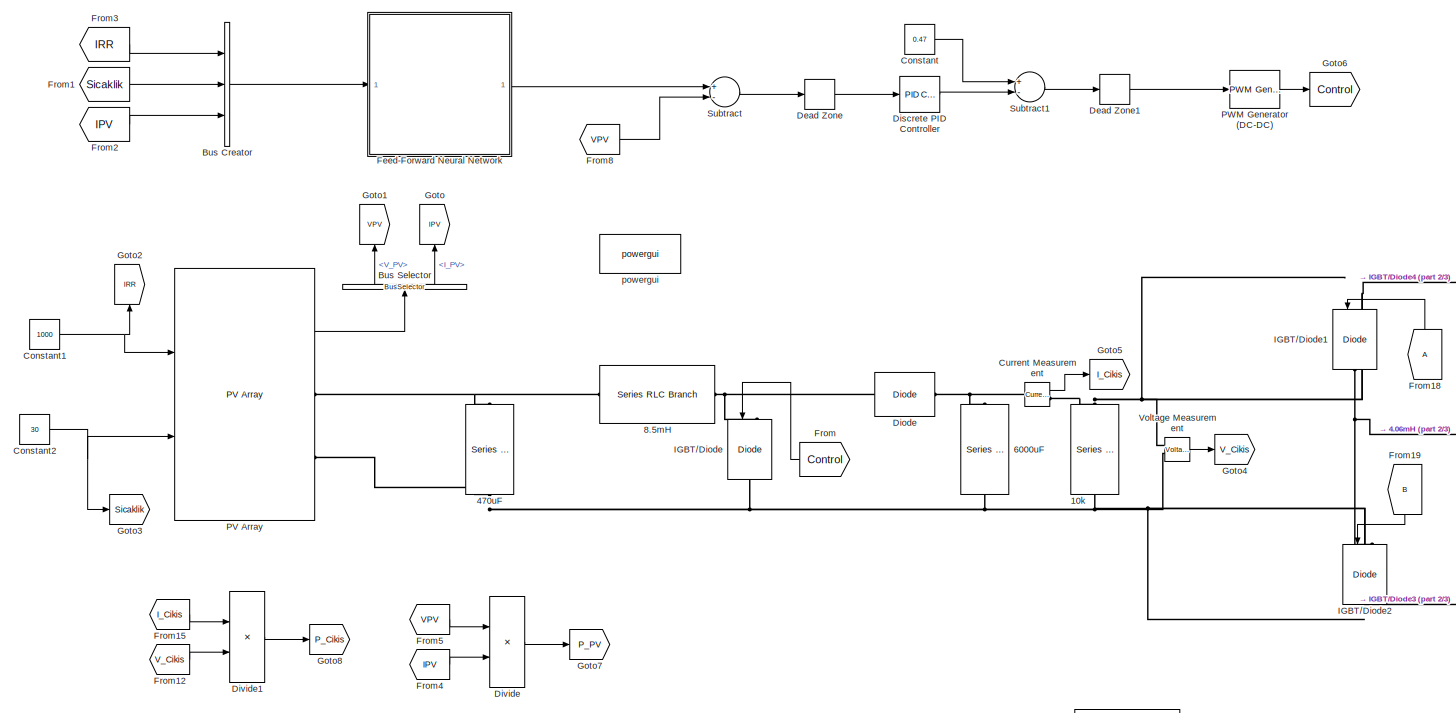
[diagram: root canvas - part 1/3, middle left region]
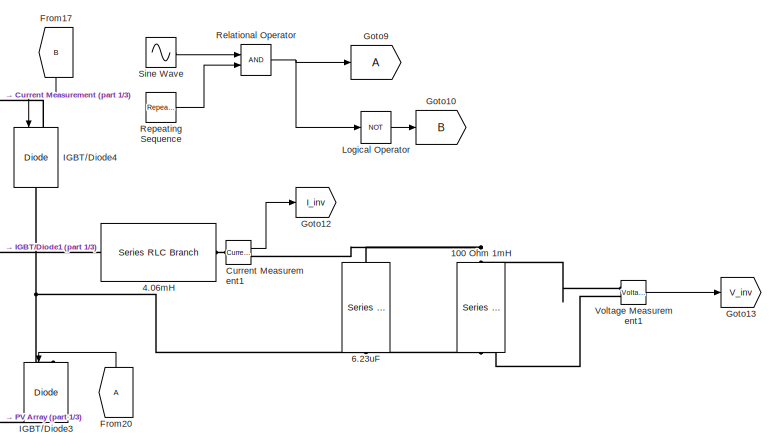
[diagram: root canvas - part 2/3, middle right region]
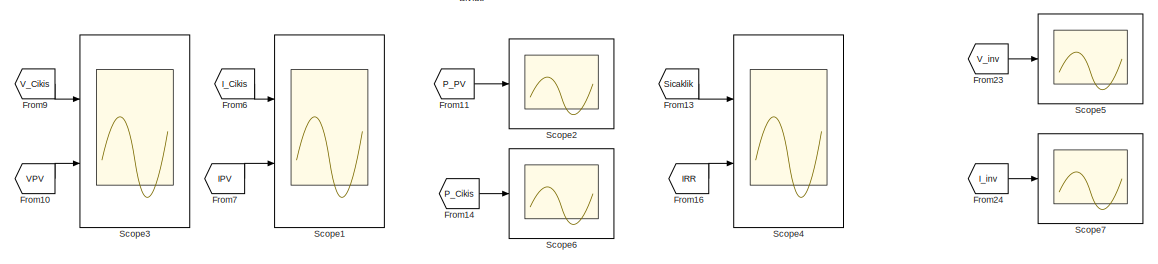
[diagram: root canvas - part 3/3, bottom left region]
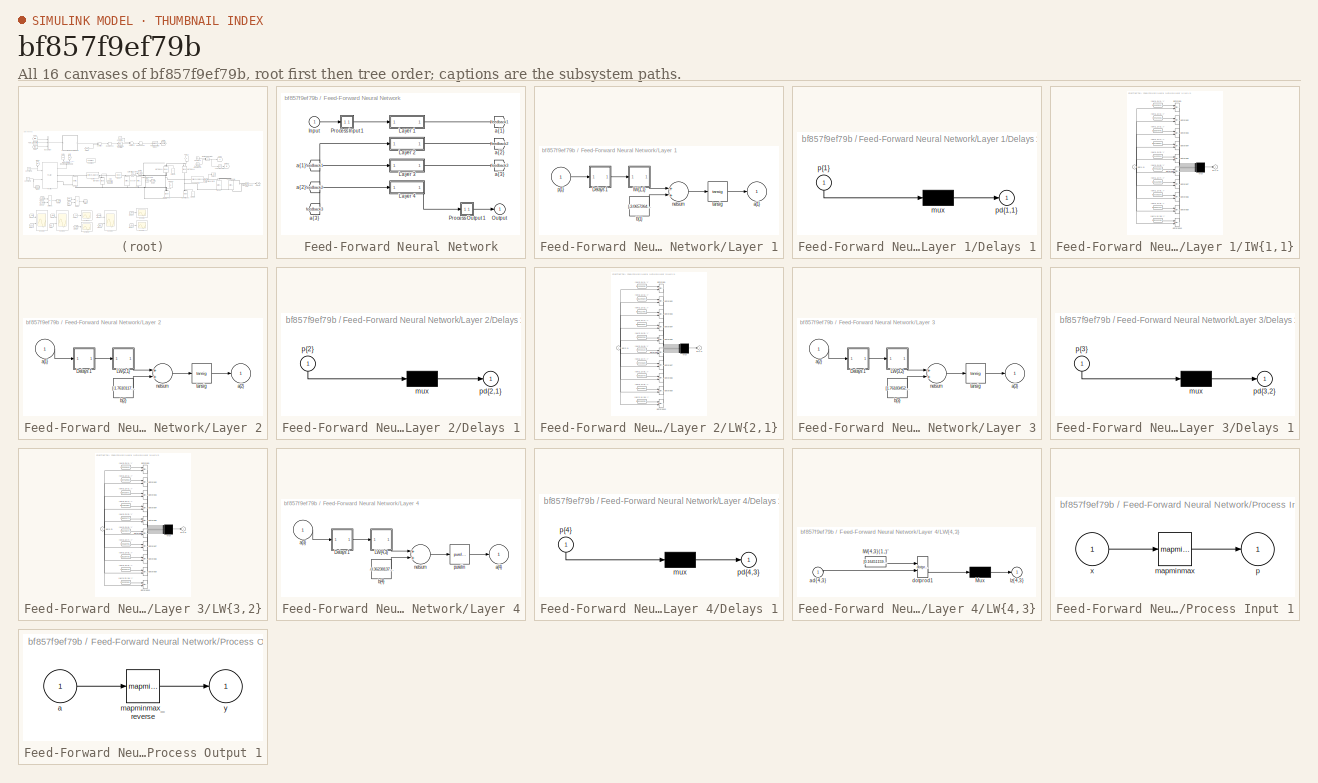
[diagram: thumbnail index - all 16 canvases of the model, root first then tree order]
MODEL slx_bf857f9ef79b
KIND model
CONFIG AbsTol = auto
CONFIG EnableMultiTasking = off
CONFIG FixedStep = 10e-6
CONFIG MaxStep = auto
CONFIG MinStep = auto
CONFIG RelTol = 1e-3
CONFIG SampleTimeConstraint = Unconstrained
CONFIG Solver = FixedStepDiscrete
CONFIG SolverName = FixedStepDiscrete
CONFIG StartTime = 0.0
CONFIG StopTime = 3.0
BLOCK [Reference] 100 Ohm 1mH   REF=powerlib/Elements/Series RLC Branch
  Ports = [0, 0, 0, 0, 0, 1, 1]
  SourceBlock = powerlib/Elements/Series RLC Branch
  SourceProductBaseCode = PS
  SourceProductName = Simscape Power Systems
  SourceType = Series RLC Branch
BLOCK [Reference] 10k  REF=powerlib/Elements/Series RLC Branch
  Ports = [0, 0, 0, 0, 0, 1, 1]
  SourceBlock = powerlib/Elements/Series RLC Branch
  SourceProductBaseCode = PS
  SourceProductName = Simscape Power Systems
  SourceType = Series RLC Branch
BLOCK [Reference] 4.06mH  REF=powerlib/Elements/Series RLC Branch
  Ports = [0, 0, 0, 0, 0, 1, 1]
  SourceBlock = powerlib/Elements/Series RLC Branch
  SourceProductBaseCode = PS
  SourceProductName = Simscape Power Systems
  SourceType = Series RLC Branch
BLOCK [Reference] 470uF  REF=powerlib/Elements/Series RLC Branch
  Ports = [0, 0, 0, 0, 0, 1, 1]
  SourceBlock = powerlib/Elements/Series RLC Branch
  SourceProductBaseCode = PS
  SourceProductName = Simscape Power Systems
  SourceType = Series RLC Branch
BLOCK [Reference] 6.23uF   REF=powerlib/Elements/Series RLC Branch
  Ports = [0, 0, 0, 0, 0, 1, 1]
  SourceBlock = powerlib/Elements/Series RLC Branch
  SourceProductBaseCode = PS
  SourceProductName = Simscape Power Systems
  SourceType = Series RLC Branch
BLOCK [Reference] 6000uF   REF=powerlib/Elements/Series RLC Branch
  Ports = [0, 0, 0, 0, 0, 1, 1]
  SourceBlock = powerlib/Elements/Series RLC Branch
  SourceProductBaseCode = PS
  SourceProductName = Simscape Power Systems
  SourceType = Series RLC Branch
BLOCK [Reference] 8.5mH  REF=powerlib/Elements/Series RLC Branch
  Ports = [0, 0, 0, 0, 0, 1, 1]
  SourceBlock = powerlib/Elements/Series RLC Branch
  SourceProductBaseCode = PS
  SourceProductName = Simscape Power Systems
  SourceType = Series RLC Branch
BLOCK [BusCreator] Bus Creator
  DisplayOption = bar
  InheritFromInputs = on
  Inputs = 3
  Ports = [3, 1]
BLOCK [BusSelector] Bus Selector
  OutputAsBus = off
  OutputSignals = V_PV,I_PV
  Ports = [1, 2]
BLOCK [Constant] Constant
  Value = 0.47
BLOCK [Constant] Constant1
  Value = 1000
BLOCK [Constant] Constant2
  Value = 30
BLOCK [Reference] Current Measurement  REF=powerlib/Measurements/Current Measurement
  Ports = [0, 1, 0, 0, 0, 1, 1]
  SourceBlock = powerlib/Measurements/Current Measurement
  SourceProductBaseCode = PS
  SourceProductName = Simscape Power Systems
  SourceType = Current Measurement
  UserDataPersistent = on
BLOCK [Reference] Current Measurement1  REF=powerlib/Measurements/Current Measurement
  Ports = [0, 1, 0, 0, 0, 1, 1]
  SourceBlock = powerlib/Measurements/Current Measurement
  SourceProductBaseCode = PS
  SourceProductName = Simscape Power Systems
  SourceType = Current Measurement
  UserDataPersistent = on
BLOCK [DeadZone] Dead Zone
  LowerValue = 0
  UpperValue = 1
BLOCK [DeadZone] Dead Zone1
  LowerValue = 0
  UpperValue = 1
BLOCK [Reference] Diode  REF=powerlib/Power
Electronics/Diode
  Ports = [0, 0, 0, 0, 0, 1, 1]
  SourceBlock = powerlib/Power\nElectronics/Diode
  SourceProductBaseCode = PS
  SourceProductName = Simscape Power Systems
  SourceType = Diode
BLOCK [Reference] Discrete PID Controller  REF=simulink/Continuous/PID Controller
  Ports = [1, 1]
  SourceBlock = simulink/Continuous/PID Controller
  SourceProductBaseCode = SL
  SourceProductName = Simulink
  SourceType = PID 1dof
BLOCK [Product] Divide
  InputSameDT = off
  Inputs = **
  OutDataTypeStr = Inherit: Inherit via internal rule
  Ports = [2, 1]
  RndMeth = Floor
  SaturateOnIntegerOverflow = off
BLOCK [Product] Divide1
  InputSameDT = off
  Inputs = **
  OutDataTypeStr = Inherit: Inherit via internal rule
  Ports = [2, 1]
  RndMeth = Floor
  SaturateOnIntegerOverflow = off
BLOCK [SubSystem] Feed-Forward Neural Network
  Ports = [1, 1]
  RequestExecContextInheritance = off
BLOCK [From] Feed-Forward Neural Network/ a{1} 
  GotoTag = feedback1
BLOCK [From] Feed-Forward Neural Network/ a{2} 
  GotoTag = feedback2
BLOCK [From] Feed-Forward Neural Network/ a{3} 
  GotoTag = feedback3
BLOCK [Inport] Feed-Forward Neural Network/Input
  IconDisplay = Port number
  PortDimensions = 3
BLOCK [SubSystem] Feed-Forward Neural Network/Layer 1
  Ports = [1, 1]
  RequestExecContextInheritance = off
BLOCK [SubSystem] Feed-Forward Neural Network/Layer 1/Delays 1
  Ports = [1, 1]
  RequestExecContextInheritance = off
BLOCK [Mux] Feed-Forward Neural Network/Layer 1/Delays 1/mux
  Inputs = 1
  Ports = [1, 1]
BLOCK [Outport] Feed-Forward Neural Network/Layer 1/Delays 1/pd{1,1}
  IconDisplay = Port number
BLOCK [Inport] Feed-Forward Neural Network/Layer 1/Delays 1/p{1}
  IconDisplay = Port number
  PortDimensions = 3
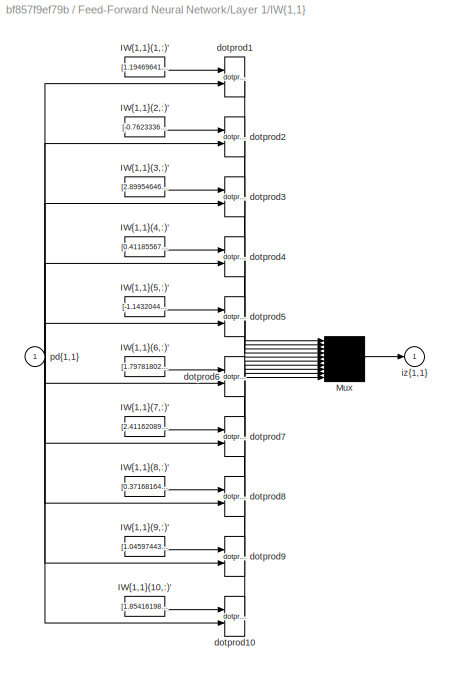
BLOCK [SubSystem] Feed-Forward Neural Network/Layer 1/IW{1,1}
  Ports = [1, 1]
  RequestExecContextInheritance = off
BLOCK [Constant] Feed-Forward Neural Network/Layer 1/IW{1,1}/IW{1,1}(1,:)'
  Value = [1.194696416877034206294183604768477380275726318359375;-2.300665658527468071525845516589470207691192626953125;-1.4738366214598517256462173463660292327404022216796875]
BLOCK [Constant] Feed-Forward Neural Network/Layer 1/IW{1,1}/IW{1,1}(10,:)'
  Value = [1.854161984111707628386511714779771864414215087890625;-1.3702128758578393519229621233534999191761016845703125;-1.9109245615166126075479269275092519819736480712890625]
BLOCK [Constant] Feed-Forward Neural Network/Layer 1/IW{1,1}/IW{1,1}(2,:)'
  Value = [-0.76233369613490753469164928901591338217258453369140625;-1.245238727395708178136146671022288501262664794921875;2.63566083323240096802919651963748037815093994140625]
BLOCK [Constant] Feed-Forward Neural Network/Layer 1/IW{1,1}/IW{1,1}(3,:)'
  Value = [2.89954646431230145253721275366842746734619140625;-0.305133871188944250096852783826761879026889801025390625;-0.69037626354315417831486456634593196213245391845703125]
BLOCK [Constant] Feed-Forward Neural Network/Layer 1/IW{1,1}/IW{1,1}(4,:)'
  Value = [0.41185567479472318108690842564101330935955047607421875;-1.78024920964271426981895274366252124309539794921875;-2.267603571340773616071828655549325048923492431640625]
BLOCK [Constant] Feed-Forward Neural Network/Layer 1/IW{1,1}/IW{1,1}(5,:)'
  Value = [-1.143204481119364235297553022974170744419097900390625;1.553552138124021819720610437798313796520233154296875;2.23063059491616133556135537219233810901641845703125]
BLOCK [Constant] Feed-Forward Neural Network/Layer 1/IW{1,1}/IW{1,1}(6,:)'
  Value = [1.7978180272984511933742624023579992353916168212890625;-1.327016418074680625949213208514265716075897216796875;1.99153874512051043410565398517064750194549560546875]
BLOCK [Constant] Feed-Forward Neural Network/Layer 1/IW{1,1}/IW{1,1}(7,:)'
  Value = [2.411620890296221286774880354641936719417572021484375;-1.76659826702359534777997396304272115230560302734375;-0.42211101715224774721946232602931559085845947265625]
BLOCK [Constant] Feed-Forward Neural Network/Layer 1/IW{1,1}/IW{1,1}(8,:)'
  Value = [0.3716816442504009554426147587946616113185882568359375;-1.8635194010268756326098582576378248631954193115234375;-2.383768703234597996498678185162134468555450439453125]
BLOCK [Constant] Feed-Forward Neural Network/Layer 1/IW{1,1}/IW{1,1}(9,:)'
  Value = [1.045974437776482801609745365567505359649658203125;-2.0525916308124845244265088695101439952850341796875;-1.9187949223707614354594852557056583464145660400390625]
BLOCK [Mux] Feed-Forward Neural Network/Layer 1/IW{1,1}/Mux
  Inputs = 10
  Ports = [10, 1]
BLOCK [Reference] Feed-Forward Neural Network/Layer 1/IW{1,1}/dotprod1  REF=neural/Weight Functions/dotprod
  Ports = [2, 1]
  SourceBlock = neural/Weight Functions/dotprod
  SourceProductBaseCode = NN
  SourceProductName = Neural Network Toolbox
  SourceType = DOTPROD
BLOCK [Reference] Feed-Forward Neural Network/Layer 1/IW{1,1}/dotprod10  REF=neural/Weight Functions/dotprod
  Ports = [2, 1]
  SourceBlock = neural/Weight Functions/dotprod
  SourceProductBaseCode = NN
  SourceProductName = Neural Network Toolbox
  SourceType = DOTPROD
BLOCK [Reference] Feed-Forward Neural Network/Layer 1/IW{1,1}/dotprod2  REF=neural/Weight Functions/dotprod
  Ports = [2, 1]
  SourceBlock = neural/Weight Functions/dotprod
  SourceProductBaseCode = NN
  SourceProductName = Neural Network Toolbox
  SourceType = DOTPROD
BLOCK [Reference] Feed-Forward Neural Network/Layer 1/IW{1,1}/dotprod3  REF=neural/Weight Functions/dotprod
  Ports = [2, 1]
  SourceBlock = neural/Weight Functions/dotprod
  SourceProductBaseCode = NN
  SourceProductName = Neural Network Toolbox
  SourceType = DOTPROD
BLOCK [Reference] Feed-Forward Neural Network/Layer 1/IW{1,1}/dotprod4  REF=neural/Weight Functions/dotprod
  Ports = [2, 1]
  SourceBlock = neural/Weight Functions/dotprod
  SourceProductBaseCode = NN
  SourceProductName = Neural Network Toolbox
  SourceType = DOTPROD
BLOCK [Reference] Feed-Forward Neural Network/Layer 1/IW{1,1}/dotprod5  REF=neural/Weight Functions/dotprod
  Ports = [2, 1]
  SourceBlock = neural/Weight Functions/dotprod
  SourceProductBaseCode = NN
  SourceProductName = Neural Network Toolbox
  SourceType = DOTPROD
BLOCK [Reference] Feed-Forward Neural Network/Layer 1/IW{1,1}/dotprod6  REF=neural/Weight Functions/dotprod
  Ports = [2, 1]
  SourceBlock = neural/Weight Functions/dotprod
  SourceProductBaseCode = NN
  SourceProductName = Neural Network Toolbox
  SourceType = DOTPROD
BLOCK [Reference] Feed-Forward Neural Network/Layer 1/IW{1,1}/dotprod7  REF=neural/Weight Functions/dotprod
  Ports = [2, 1]
  SourceBlock = neural/Weight Functions/dotprod
  SourceProductBaseCode = NN
  SourceProductName = Neural Network Toolbox
  SourceType = DOTPROD
BLOCK [Reference] Feed-Forward Neural Network/Layer 1/IW{1,1}/dotprod8  REF=neural/Weight Functions/dotprod
  Ports = [2, 1]
  SourceBlock = neural/Weight Functions/dotprod
  SourceProductBaseCode = NN
  SourceProductName = Neural Network Toolbox
  SourceType = DOTPROD
BLOCK [Reference] Feed-Forward Neural Network/Layer 1/IW{1,1}/dotprod9  REF=neural/Weight Functions/dotprod
  Ports = [2, 1]
  SourceBlock = neural/Weight Functions/dotprod
  SourceProductBaseCode = NN
  SourceProductName = Neural Network Toolbox
  SourceType = DOTPROD
BLOCK [Outport] Feed-Forward Neural Network/Layer 1/IW{1,1}/iz{1,1}
  IconDisplay = Port number
BLOCK [Inport] Feed-Forward Neural Network/Layer 1/IW{1,1}/pd{1,1}
  IconDisplay = Port number
  PortDimensions = 3
BLOCK [Outport] Feed-Forward Neural Network/Layer 1/a{1}
  IconDisplay = Port number
  InitialOutput = [0;0;0;0;0;0;0;0;0;0]
BLOCK [Constant] Feed-Forward Neural Network/Layer 1/b{1}
  Value = [-3.06572642225638247737151687033474445343017578125;2.34263877199734782408313549240119755268096923828125;-1.6554597006666771363825318985618650913238525390625;-1.1806944337025917501904359596665017306804656982421875;0.438583826991625624902582103459280915558338165283203125;0.336460892113827958471716783606098033487796783447265625;1.066182407193333236961052534752525389194488525390625;1.6554215030049590...<+134ch>
BLOCK [Sum] Feed-Forward Neural Network/Layer 1/netsum
  Inputs = 2
  Ports = [2, 1]
BLOCK [Inport] Feed-Forward Neural Network/Layer 1/p{1}
  IconDisplay = Port number
  PortDimensions = 3
BLOCK [Reference] Feed-Forward Neural Network/Layer 1/tansig  REF=neural/Transfer Functions/tansig
  Ports = [1, 1]
  SourceBlock = neural/Transfer Functions/tansig
  SourceProductBaseCode = NN
  SourceProductName = Neural Network Toolbox
  SourceType = TANSIG
BLOCK [SubSystem] Feed-Forward Neural Network/Layer 2
  Ports = [1, 1]
  RequestExecContextInheritance = off
BLOCK [SubSystem] Feed-Forward Neural Network/Layer 2/Delays 1
  Ports = [1, 1]
  RequestExecContextInheritance = off
BLOCK [Mux] Feed-Forward Neural Network/Layer 2/Delays 1/mux
  Inputs = 1
  Ports = [1, 1]
BLOCK [Outport] Feed-Forward Neural Network/Layer 2/Delays 1/pd{2,1}
  IconDisplay = Port number
BLOCK [Inport] Feed-Forward Neural Network/Layer 2/Delays 1/p{2}
  IconDisplay = Port number
  PortDimensions = 10
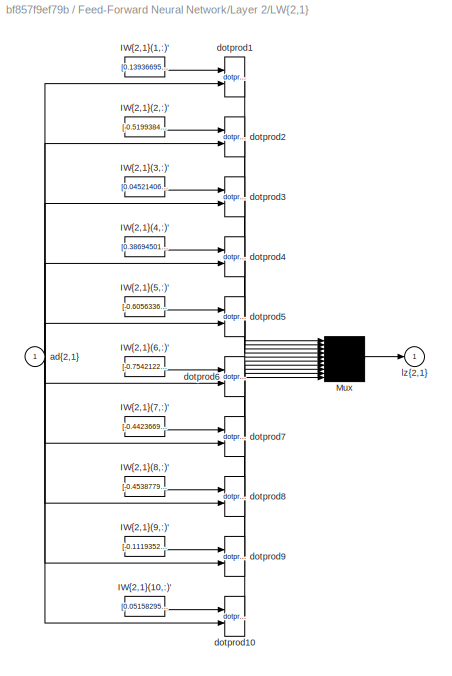
BLOCK [SubSystem] Feed-Forward Neural Network/Layer 2/LW{2,1}
  Ports = [1, 1]
  RequestExecContextInheritance = off
BLOCK [Constant] Feed-Forward Neural Network/Layer 2/LW{2,1}/IW{2,1}(1,:)'
  Value = [0.139366959458870509624972555684507824480533599853515625;-0.614827281062519492849105517962016165256500244140625;0.688177894740557238861811129027046263217926025390625;-0.68701419847141009800139954677433706820011138916015625;-0.58319759106715718388613822753541171550750732421875;-0.696423970065430442133447286323644220829010009765625;-0.469060357227766899779197729003499262034893035888671875;-0.652779...<+163ch>
BLOCK [Constant] Feed-Forward Neural Network/Layer 2/LW{2,1}/IW{2,1}(10,:)'
  Value = [0.051582951013673460083364119554971694014966487884521484375;-0.17592767164152700587465005810372531414031982421875;1.0624478089774822553437161332112736999988555908203125;0.4327226482321002709596768909250386059284210205078125;-0.68760670468995865878270024040830321609973907470703125;0.093995743159521083498475491069257259368896484375;0.07687660252497878488053828505144338123500347137451171875;-0.78486...<+163ch>
BLOCK [Constant] Feed-Forward Neural Network/Layer 2/LW{2,1}/IW{2,1}(2,:)'
  Value = [-0.51993849269170577809262567825498990714550018310546875;-0.69632182265172770652128519941470585763454437255859375;0.173453502341893328608790625366964377462863922119140625;1.038107292706407225324483079020865261554718017578125;0.32314185661799632587332098410115577280521392822265625;0.5531996419080911220333973687957040965557098388671875;-0.7893913973766839564660813266527839004993438720703125;0.50679...<+164ch>
BLOCK [Constant] Feed-Forward Neural Network/Layer 2/LW{2,1}/IW{2,1}(3,:)'
  Value = [0.045214066538750659340895055038345162756741046905517578125;0.72801425718701884282069158871308900415897369384765625;-0.03245155247372959184115615016708034090697765350341796875;0.5957504689197359315500079901539720594882965087890625;0.209315510922623404521658585508703254163265228271484375;0.260901920899436257084147428031428717076778411865234375;0.62563254962454806218374869786202907562255859375;-0.9...<+164ch>
BLOCK [Constant] Feed-Forward Neural Network/Layer 2/LW{2,1}/IW{2,1}(4,:)'
  Value = [0.38694501837432870861022138342377729713916778564453125;-0.8367057728349533984868457991979084908962249755859375;-0.45296886333229668952782276392099447548389434814453125;0.5348012619652198207376159189152531325817108154296875;0.467989646680515292143098804444889537990093231201171875;-0.052566207680762956633291338448543683625757694244384765625;-0.83013483182869129972658583938027732074260711669921875;...<+168ch>
BLOCK [Constant] Feed-Forward Neural Network/Layer 2/LW{2,1}/IW{2,1}(5,:)'
  Value = [-0.60563364240767381119212586781941354274749755859375;0.8769349923406453140017902114777825772762298583984375;-0.1620805188494852944192103905152180232107639312744140625;-0.60332173294263113927371477984706871211528778076171875;0.2321111430504836092847398276717285625636577606201171875;0.58028745292035444069966843017027713358402252197265625;0.1185108847643980833908017302746884524822235107421875;0.198...<+165ch>
BLOCK [Constant] Feed-Forward Neural Network/Layer 2/LW{2,1}/IW{2,1}(6,:)'
  Value = [-0.75421220459027704663412805530242621898651123046875;0.461712590692150925963943564056535251438617706298828125;0.2253937881064137227493660020627430640161037445068359375;-0.37061869623850773880491260570124723017215728759765625;0.77303136544003747676612192663014866411685943603515625;0.19440028916589480179055726694059558212757110595703125;-0.8021093971332866612300449560279957950115203857421875;-0.81...<+166ch>
BLOCK [Constant] Feed-Forward Neural Network/Layer 2/LW{2,1}/IW{2,1}(7,:)'
  Value = [-0.44236690922853927343538771310704760253429412841796875;-0.0199232441405640392506626312751905061304569244384765625;0.434080347927826404319517905605607666075229644775390625;-0.292824606370899187535172814023098908364772796630859375;0.86526037630491969832036147636245004832744598388671875;0.268578561631060974690399234532378613948822021484375;1.0050045005866212743939058782416395843029022216796875;0.7...<+170ch>
BLOCK [Constant] Feed-Forward Neural Network/Layer 2/LW{2,1}/IW{2,1}(8,:)'
  Value = [-0.4538779732604474315138531892444007098674774169921875;0.15074491562138037092921649673371575772762298583984375;-0.137303811242998674568838168852380476891994476318359375;0.4837000443810832717161929394933395087718963623046875;-0.47067247727733285689311060195905156433582305908203125;0.832822438274227305754493499989621341228485107421875;0.61718444934654204114821141047286801040172576904296875;0.79490...<+163ch>
BLOCK [Constant] Feed-Forward Neural Network/Layer 2/LW{2,1}/IW{2,1}(9,:)'
  Value = [-0.11193523658570504741849305219147936441004276275634765625;-0.6412716785848810996384372629108838737010955810546875;-0.30510987252114174506090193972340784966945648193359375;-0.70296724709517899309929589435341767966747283935546875;0.394439507578847547986100607886328361928462982177734375;0.6673373041884496092990275428746826946735382080078125;-0.165922148603146107914696472107607405632734298706054687...<+169ch>
BLOCK [Mux] Feed-Forward Neural Network/Layer 2/LW{2,1}/Mux
  Inputs = 10
  Ports = [10, 1]
BLOCK [Inport] Feed-Forward Neural Network/Layer 2/LW{2,1}/ad{2,1}
  IconDisplay = Port number
  PortDimensions = 10
BLOCK [Reference] Feed-Forward Neural Network/Layer 2/LW{2,1}/dotprod1  REF=neural/Weight Functions/dotprod
  Ports = [2, 1]
  SourceBlock = neural/Weight Functions/dotprod
  SourceProductBaseCode = NN
  SourceProductName = Neural Network Toolbox
  SourceType = DOTPROD
BLOCK [Reference] Feed-Forward Neural Network/Layer 2/LW{2,1}/dotprod10  REF=neural/Weight Functions/dotprod
  Ports = [2, 1]
  SourceBlock = neural/Weight Functions/dotprod
  SourceProductBaseCode = NN
  SourceProductName = Neural Network Toolbox
  SourceType = DOTPROD
BLOCK [Reference] Feed-Forward Neural Network/Layer 2/LW{2,1}/dotprod2  REF=neural/Weight Functions/dotprod
  Ports = [2, 1]
  SourceBlock = neural/Weight Functions/dotprod
  SourceProductBaseCode = NN
  SourceProductName = Neural Network Toolbox
  SourceType = DOTPROD
BLOCK [Reference] Feed-Forward Neural Network/Layer 2/LW{2,1}/dotprod3  REF=neural/Weight Functions/dotprod
  Ports = [2, 1]
  SourceBlock = neural/Weight Functions/dotprod
  SourceProductBaseCode = NN
  SourceProductName = Neural Network Toolbox
  SourceType = DOTPROD
BLOCK [Reference] Feed-Forward Neural Network/Layer 2/LW{2,1}/dotprod4  REF=neural/Weight Functions/dotprod
  Ports = [2, 1]
  SourceBlock = neural/Weight Functions/dotprod
  SourceProductBaseCode = NN
  SourceProductName = Neural Network Toolbox
  SourceType = DOTPROD
BLOCK [Reference] Feed-Forward Neural Network/Layer 2/LW{2,1}/dotprod5  REF=neural/Weight Functions/dotprod
  Ports = [2, 1]
  SourceBlock = neural/Weight Functions/dotprod
  SourceProductBaseCode = NN
  SourceProductName = Neural Network Toolbox
  SourceType = DOTPROD
BLOCK [Reference] Feed-Forward Neural Network/Layer 2/LW{2,1}/dotprod6  REF=neural/Weight Functions/dotprod
  Ports = [2, 1]
  SourceBlock = neural/Weight Functions/dotprod
  SourceProductBaseCode = NN
  SourceProductName = Neural Network Toolbox
  SourceType = DOTPROD
BLOCK [Reference] Feed-Forward Neural Network/Layer 2/LW{2,1}/dotprod7  REF=neural/Weight Functions/dotprod
  Ports = [2, 1]
  SourceBlock = neural/Weight Functions/dotprod
  SourceProductBaseCode = NN
  SourceProductName = Neural Network Toolbox
  SourceType = DOTPROD
BLOCK [Reference] Feed-Forward Neural Network/Layer 2/LW{2,1}/dotprod8  REF=neural/Weight Functions/dotprod
  Ports = [2, 1]
  SourceBlock = neural/Weight Functions/dotprod
  SourceProductBaseCode = NN
  SourceProductName = Neural Network Toolbox
  SourceType = DOTPROD
BLOCK [Reference] Feed-Forward Neural Network/Layer 2/LW{2,1}/dotprod9  REF=neural/Weight Functions/dotprod
  Ports = [2, 1]
  SourceBlock = neural/Weight Functions/dotprod
  SourceProductBaseCode = NN
  SourceProductName = Neural Network Toolbox
  SourceType = DOTPROD
BLOCK [Outport] Feed-Forward Neural Network/Layer 2/LW{2,1}/lz{2,1}
  IconDisplay = Port number
BLOCK [Inport] Feed-Forward Neural Network/Layer 2/a{1} 
  IconDisplay = Port number
  PortDimensions = 10
BLOCK [Outport] Feed-Forward Neural Network/Layer 2/a{2}
  IconDisplay = Port number
  InitialOutput = [0;0;0;0;0;0;0;0;0;0]
BLOCK [Constant] Feed-Forward Neural Network/Layer 2/b{2}
  Value = [-1.761011765199532508319180124090053141117095947265625;1.2715804793170837339033596435911022126674652099609375;-0.88043293802432487371589786562253721058368682861328125;-0.6058358841646882542164576079812832176685333251953125;0.346015250011034447563673666081740520894527435302734375;-0.22823197270950934534283760513062588870525360107421875;-0.634241829328281436772840606863610446453094482421875;-0.9665...<+161ch>
BLOCK [Sum] Feed-Forward Neural Network/Layer 2/netsum
  Inputs = 2
  Ports = [2, 1]
BLOCK [Reference] Feed-Forward Neural Network/Layer 2/tansig  REF=neural/Transfer Functions/tansig
  Ports = [1, 1]
  SourceBlock = neural/Transfer Functions/tansig
  SourceProductBaseCode = NN
  SourceProductName = Neural Network Toolbox
  SourceType = TANSIG
BLOCK [SubSystem] Feed-Forward Neural Network/Layer 3
  Ports = [1, 1]
  RequestExecContextInheritance = off
BLOCK [SubSystem] Feed-Forward Neural Network/Layer 3/Delays 1
  Ports = [1, 1]
  RequestExecContextInheritance = off
BLOCK [Mux] Feed-Forward Neural Network/Layer 3/Delays 1/mux
  Inputs = 1
  Ports = [1, 1]
BLOCK [Outport] Feed-Forward Neural Network/Layer 3/Delays 1/pd{3,2}
  IconDisplay = Port number
BLOCK [Inport] Feed-Forward Neural Network/Layer 3/Delays 1/p{3}
  IconDisplay = Port number
  PortDimensions = 10
BLOCK [SubSystem] Feed-Forward Neural Network/Layer 3/LW{3,2}
  Ports = [1, 1]
  RequestExecContextInheritance = off
BLOCK [Constant] Feed-Forward Neural Network/Layer 3/LW{3,2}/IW{3,2}(1,:)'
  Value = [-0.3999846606919224001330803730525076389312744140625;0.869918937407937686856485015596263110637664794921875;-0.38301463792397105745379803920513950288295745849609375;-0.89957239528069476985905339461169205605983734130859375;0.278496550774055273702600743490620516240596771240234375;-0.47808471685320619304349065714632160961627960205078125;0.7822134109873974949778130394406616687774658203125;-0.148908453...<+155ch>
BLOCK [Constant] Feed-Forward Neural Network/Layer 3/LW{3,2}/IW{3,2}(10,:)'
  Value = [-0.3335366738703509081886977583053521811962127685546875;0.8716491908409949029845620316336862742900848388671875;-0.5562354869371726184823501171194948256015777587890625;0.60687793223369645989606624425505287945270538330078125;-0.002823750865846845481410554157264414243400096893310546875;-0.780880359966358295054078553221188485622406005859375;-0.62193568994668113614210369632928632199764251708984375;-0....<+168ch>
BLOCK [Constant] Feed-Forward Neural Network/Layer 3/LW{3,2}/IW{3,2}(2,:)'
  Value = [-0.07589508450538652584160814740243949927389621734619140625;0.9608167461922623164838341836002655327320098876953125;0.33727821283747105862715898183523677289485931396484375;0.2230341467841015223871892203533207066357135772705078125;-0.175479300906613511212839284780784510076045989990234375;-0.434879062001289840022622001924901269376277923583984375;0.8216030020109043041642848947958555072546005249023437...<+170ch>
BLOCK [Constant] Feed-Forward Neural Network/Layer 3/LW{3,2}/IW{3,2}(3,:)'
  Value = [-0.84286716117852311658253938730922527611255645751953125;-0.77943358573383958454172670826665125787258148193359375;0.286533028630781061441012980139930732548236846923828125;0.68868301669111053886496165432617999613285064697265625;-0.447957157397504246443276088029961101710796356201171875;0.31590125548953562617526813482982106506824493408203125;0.57324759215105391962907788183656521141529083251953125;0....<+168ch>
BLOCK [Constant] Feed-Forward Neural Network/Layer 3/LW{3,2}/IW{3,2}(4,:)'
  Value = [1.110649517118452056507749148295260965824127197265625;0.5459382548380329325254933792166411876678466796875;0.07669214459164029606963453034040867350995540618896484375;0.393147241269902192328800083487294614315032958984375;-0.1393901081632832605894378730226890183985233306884765625;-0.511297288515500714112249625031836330890655517578125;-0.53751111068689716443458337380434386432170867919921875;-0.075375...<+159ch>
BLOCK [Constant] Feed-Forward Neural Network/Layer 3/LW{3,2}/IW{3,2}(5,:)'
  Value = [-0.800317324961350440304386211209930479526519775390625;-0.487994804901162648747003913740627467632293701171875;0.472520543861635167193213646896765567362308502197265625;-0.747237069818296628653797597507946193218231201171875;-0.08499634211297439623233884731234866194427013397216796875;0.639966007929543057031196440220810472965240478515625;0.19340712680851990246111427040887065231800079345703125;0.51142...<+160ch>
BLOCK [Constant] Feed-Forward Neural Network/Layer 3/LW{3,2}/IW{3,2}(6,:)'
  Value = [-0.66485722646626388421253750493633560836315155029296875;-0.04060210922424743740233310518306097947061061859130859375;0.16375058962347777136159265864989720284938812255859375;-0.1916306965280981933208437339999363757669925689697265625;-0.51468487503972648600125694429152645170688629150390625;0.9356067642331691303070329013280570507049560546875;-0.75673626426666296129752709020976908504962921142578125;0...<+168ch>
BLOCK [Constant] Feed-Forward Neural Network/Layer 3/LW{3,2}/IW{3,2}(7,:)'
  Value = [-0.458849696871556744781628367491066455841064453125;0.1775032042689372036026185242008068598806858062744140625;-1.2224105045717863493592858503689058125019073486328125;-0.1341662349867452641571929916608496569097042083740234375;0.304638395586930565972494378002011217176914215087890625;0.83125539407307857953099983205902390182018280029296875;-0.303320512860833446655561829174985177814960479736328125;0.5...<+169ch>
BLOCK [Constant] Feed-Forward Neural Network/Layer 3/LW{3,2}/IW{3,2}(8,:)'
  Value = [-0.51807307113571232637383445762679912149906158447265625;0.7609322707975600952323702585999853909015655517578125;-0.6525205075667031007213836346636526286602020263671875;0.8364000484267222201850700002978555858135223388671875;-0.4473999293771646623696369715617038309574127197265625;-0.2369518394958663176641522341014933772385120391845703125;-0.301751757875491743998708216167869977653026580810546875;-0....<+167ch>
BLOCK [Constant] Feed-Forward Neural Network/Layer 3/LW{3,2}/IW{3,2}(9,:)'
  Value = [-0.07501709404785657231418127821598318405449390411376953125;-0.1640989556511952829342959603309282101690769195556640625;0.9802271502012300796735644325963221490383148193359375;-0.69083573545794607628778294383664615452289581298828125;-0.08556944467633280371199333558251964859664440155029296875;0.3080324207150397786136863942374475300312042236328125;-0.56808917063151675996834910620236769318580627441406...<+177ch>
BLOCK [Mux] Feed-Forward Neural Network/Layer 3/LW{3,2}/Mux
  Inputs = 10
  Ports = [10, 1]
BLOCK [Inport] Feed-Forward Neural Network/Layer 3/LW{3,2}/ad{3,2}
  IconDisplay = Port number
  PortDimensions = 10
BLOCK [Reference] Feed-Forward Neural Network/Layer 3/LW{3,2}/dotprod1  REF=neural/Weight Functions/dotprod
  Ports = [2, 1]
  SourceBlock = neural/Weight Functions/dotprod
  SourceProductBaseCode = NN
  SourceProductName = Neural Network Toolbox
  SourceType = DOTPROD
BLOCK [Reference] Feed-Forward Neural Network/Layer 3/LW{3,2}/dotprod10  REF=neural/Weight Functions/dotprod
  Ports = [2, 1]
  SourceBlock = neural/Weight Functions/dotprod
  SourceProductBaseCode = NN
  SourceProductName = Neural Network Toolbox
  SourceType = DOTPROD
BLOCK [Reference] Feed-Forward Neural Network/Layer 3/LW{3,2}/dotprod2  REF=neural/Weight Functions/dotprod
  Ports = [2, 1]
  SourceBlock = neural/Weight Functions/dotprod
  SourceProductBaseCode = NN
  SourceProductName = Neural Network Toolbox
  SourceType = DOTPROD
BLOCK [Reference] Feed-Forward Neural Network/Layer 3/LW{3,2}/dotprod3  REF=neural/Weight Functions/dotprod
  Ports = [2, 1]
  SourceBlock = neural/Weight Functions/dotprod
  SourceProductBaseCode = NN
  SourceProductName = Neural Network Toolbox
  SourceType = DOTPROD
BLOCK [Reference] Feed-Forward Neural Network/Layer 3/LW{3,2}/dotprod4  REF=neural/Weight Functions/dotprod
  Ports = [2, 1]
  SourceBlock = neural/Weight Functions/dotprod
  SourceProductBaseCode = NN
  SourceProductName = Neural Network Toolbox
  SourceType = DOTPROD
BLOCK [Reference] Feed-Forward Neural Network/Layer 3/LW{3,2}/dotprod5  REF=neural/Weight Functions/dotprod
  Ports = [2, 1]
  SourceBlock = neural/Weight Functions/dotprod
  SourceProductBaseCode = NN
  SourceProductName = Neural Network Toolbox
  SourceType = DOTPROD
BLOCK [Reference] Feed-Forward Neural Network/Layer 3/LW{3,2}/dotprod6  REF=neural/Weight Functions/dotprod
  Ports = [2, 1]
  SourceBlock = neural/Weight Functions/dotprod
  SourceProductBaseCode = NN
  SourceProductName = Neural Network Toolbox
  SourceType = DOTPROD
BLOCK [Reference] Feed-Forward Neural Network/Layer 3/LW{3,2}/dotprod7  REF=neural/Weight Functions/dotprod
  Ports = [2, 1]
  SourceBlock = neural/Weight Functions/dotprod
  SourceProductBaseCode = NN
  SourceProductName = Neural Network Toolbox
  SourceType = DOTPROD
BLOCK [Reference] Feed-Forward Neural Network/Layer 3/LW{3,2}/dotprod8  REF=neural/Weight Functions/dotprod
  Ports = [2, 1]
  SourceBlock = neural/Weight Functions/dotprod
  SourceProductBaseCode = NN
  SourceProductName = Neural Network Toolbox
  SourceType = DOTPROD
BLOCK [Reference] Feed-Forward Neural Network/Layer 3/LW{3,2}/dotprod9  REF=neural/Weight Functions/dotprod
  Ports = [2, 1]
  SourceBlock = neural/Weight Functions/dotprod
  SourceProductBaseCode = NN
  SourceProductName = Neural Network Toolbox
  SourceType = DOTPROD
BLOCK [Outport] Feed-Forward Neural Network/Layer 3/LW{3,2}/lz{3,2}
  IconDisplay = Port number
BLOCK [Inport] Feed-Forward Neural Network/Layer 3/a{2} 
  IconDisplay = Port number
  PortDimensions = 10
BLOCK [Outport] Feed-Forward Neural Network/Layer 3/a{3}
  IconDisplay = Port number
  InitialOutput = [0;0;0;0;0;0;0;0;0;0]
BLOCK [Constant] Feed-Forward Neural Network/Layer 3/b{3}
  Value = [1.7618345265120474163467179096187464892864227294921875;1.292673938142322231925618325476534664630889892578125;0.9690923253515919544298640175838954746723175048828125;-0.5933558031952761435690035796142183244228363037109375;0.251473232427495585472598804699373431503772735595703125;-0.1878821202366456055710131067826296202838420867919921875;-0.61472997472061818857724802001030184328556060791015625;-0.982...<+158ch>
BLOCK [Sum] Feed-Forward Neural Network/Layer 3/netsum
  Inputs = 2
  Ports = [2, 1]
BLOCK [Reference] Feed-Forward Neural Network/Layer 3/tansig  REF=neural/Transfer Functions/tansig
  Ports = [1, 1]
  SourceBlock = neural/Transfer Functions/tansig
  SourceProductBaseCode = NN
  SourceProductName = Neural Network Toolbox
  SourceType = TANSIG
BLOCK [SubSystem] Feed-Forward Neural Network/Layer 4
  Ports = [1, 1]
  RequestExecContextInheritance = off
BLOCK [SubSystem] Feed-Forward Neural Network/Layer 4/Delays 1
  Ports = [1, 1]
  RequestExecContextInheritance = off
BLOCK [Mux] Feed-Forward Neural Network/Layer 4/Delays 1/mux
  Inputs = 1
  Ports = [1, 1]
BLOCK [Outport] Feed-Forward Neural Network/Layer 4/Delays 1/pd{4,3}
  IconDisplay = Port number
BLOCK [Inport] Feed-Forward Neural Network/Layer 4/Delays 1/p{4}
  IconDisplay = Port number
  PortDimensions = 10
BLOCK [SubSystem] Feed-Forward Neural Network/Layer 4/LW{4,3}
  Ports = [1, 1]
  RequestExecContextInheritance = off
BLOCK [Constant] Feed-Forward Neural Network/Layer 4/LW{4,3}/IW{4,3}(1,:)'
  Value = [0.164511595194792803464878261365811340510845184326171875;1.0502385251391472831272722032736055552959442138671875;0.295280439892644797073018025912460871040821075439453125;0.78025847718473106962022711741155944764614105224609375;-0.26989225242252512515506168710999190807342529296875;0.52784334872508165137361402230453677475452423095703125;0.11383992554494480609061923814806505106389522552490234375;0.189...<+163ch>
BLOCK [Mux] Feed-Forward Neural Network/Layer 4/LW{4,3}/Mux
  Inputs = 1
  Ports = [1, 1]
BLOCK [Inport] Feed-Forward Neural Network/Layer 4/LW{4,3}/ad{4,3}
  IconDisplay = Port number
  PortDimensions = 10
BLOCK [Reference] Feed-Forward Neural Network/Layer 4/LW{4,3}/dotprod1  REF=neural/Weight Functions/dotprod
  Ports = [2, 1]
  SourceBlock = neural/Weight Functions/dotprod
  SourceProductBaseCode = NN
  SourceProductName = Neural Network Toolbox
  SourceType = DOTPROD
BLOCK [Outport] Feed-Forward Neural Network/Layer 4/LW{4,3}/lz{4,3}
  IconDisplay = Port number
BLOCK [Inport] Feed-Forward Neural Network/Layer 4/a{3} 
  IconDisplay = Port number
  PortDimensions = 10
BLOCK [Outport] Feed-Forward Neural Network/Layer 4/a{4}
  IconDisplay = Port number
  InitialOutput = 0
BLOCK [Constant] Feed-Forward Neural Network/Layer 4/b{4}
  Value = -0.362381375503593006204283710758318193256855010986328125
BLOCK [Sum] Feed-Forward Neural Network/Layer 4/netsum
  Inputs = 2
  Ports = [2, 1]
BLOCK [Reference] Feed-Forward Neural Network/Layer 4/purelin  REF=neural/Transfer Functions/purelin
  Ports = [1, 1]
  SourceBlock = neural/Transfer Functions/purelin
  SourceProductBaseCode = NN
  SourceProductName = Neural Network Toolbox
  SourceType = PURELIN
BLOCK [Outport] Feed-Forward Neural Network/Output
  IconDisplay = Port number
  InitialOutput = 0
BLOCK [SubSystem] Feed-Forward Neural Network/Process Input 1
  Ports = [1, 1]
  RequestExecContextInheritance = off
BLOCK [Reference] Feed-Forward Neural Network/Process Input 1/mapminmax  REF=neural/Processing Functions/mapminmax
  Ports = [1, 1]
  SourceBlock = neural/Processing Functions/mapminmax
  SourceProductBaseCode = NN
  SourceProductName = Neural Network Toolbox
  SourceType = MAPMINMAX Preprocess
BLOCK [Outport] Feed-Forward Neural Network/Process Input 1/p
  IconDisplay = Port number
  PortDimensions = 3
BLOCK [Inport] Feed-Forward Neural Network/Process Input 1/x
  IconDisplay = Port number
  PortDimensions = 3
BLOCK [SubSystem] Feed-Forward Neural Network/Process Output 1
  Ports = [1, 1]
  RequestExecContextInheritance = off
BLOCK [Inport] Feed-Forward Neural Network/Process Output 1/a
  IconDisplay = Port number
  PortDimensions = 1
BLOCK [Reference] Feed-Forward Neural Network/Process Output 1/mapminmax_reverse  REF=neural/Processing Functions/mapminmax_reverse
  Ports = [1, 1]
  SourceBlock = neural/Processing Functions/mapminmax_reverse
  SourceProductBaseCode = NN
  SourceProductName = Neural Network Toolbox
  SourceType = MAPMINMAX Reverse Process
BLOCK [Outport] Feed-Forward Neural Network/Process Output 1/y
  IconDisplay = Port number
  PortDimensions = 1
BLOCK [Goto] Feed-Forward Neural Network/a{1}
  GotoTag = feedback1
BLOCK [Goto] Feed-Forward Neural Network/a{2}
  GotoTag = feedback2
BLOCK [Goto] Feed-Forward Neural Network/a{3}
  GotoTag = feedback3
BLOCK [From] From
  GotoTag = Control
BLOCK [From] From1
  GotoTag = Sicaklik
BLOCK [From] From10
  GotoTag = VPV
BLOCK [From] From11
  GotoTag = P_PV
BLOCK [From] From12
  GotoTag = V_Cikis
BLOCK [From] From13
  GotoTag = Sicaklik
BLOCK [From] From14
  GotoTag = P_Cikis
BLOCK [From] From15
  GotoTag = I_Cikis
BLOCK [From] From16
  GotoTag = IRR
BLOCK [From] From17
  GotoTag = B
BLOCK [From] From18
BLOCK [From] From19
  GotoTag = B
BLOCK [From] From2
  GotoTag = IPV
BLOCK [From] From20
BLOCK [From] From23
  GotoTag = V_inv
BLOCK [From] From24
  GotoTag = I_inv
BLOCK [From] From3
  GotoTag = IRR
BLOCK [From] From4
  GotoTag = IPV
BLOCK [From] From5
  GotoTag = VPV
BLOCK [From] From6
  GotoTag = I_Cikis
BLOCK [From] From7
  GotoTag = IPV
BLOCK [From] From8
  GotoTag = VPV
BLOCK [From] From9
  GotoTag = V_Cikis
BLOCK [Goto] Goto
  GotoTag = IPV
BLOCK [Goto] Goto1
  GotoTag = VPV
BLOCK [Goto] Goto10
  GotoTag = B
BLOCK [Goto] Goto12
  GotoTag = I_inv
BLOCK [Goto] Goto13
  GotoTag = V_inv
BLOCK [Goto] Goto2
  GotoTag = IRR
BLOCK [Goto] Goto3
  GotoTag = Sicaklik
BLOCK [Goto] Goto4
  GotoTag = V_Cikis
BLOCK [Goto] Goto5
  GotoTag = I_Cikis
BLOCK [Goto] Goto6
  GotoTag = Control
BLOCK [Goto] Goto7
  GotoTag = P_PV
BLOCK [Goto] Goto8
  GotoTag = P_Cikis
BLOCK [Goto] Goto9
BLOCK [Reference] IGBT//Diode  REF=powerlib/Power
Electronics/IGBT//Diode
  Ports = [1, 0, 0, 0, 0, 1, 1]
  SourceBlock = powerlib/Power\nElectronics/IGBT//Diode
  SourceProductBaseCode = PS
  SourceProductName = Simscape Power Systems
  SourceType = IGBT/Diode
BLOCK [Reference] IGBT//Diode1  REF=powerlib/Power
Electronics/IGBT//Diode
  Ports = [1, 0, 0, 0, 0, 1, 1]
  SourceBlock = powerlib/Power\nElectronics/IGBT//Diode
  SourceProductBaseCode = PS
  SourceProductName = Simscape Power Systems
  SourceType = IGBT/Diode
BLOCK [Reference] IGBT//Diode2  REF=powerlib/Power
Electronics/IGBT//Diode
  Ports = [1, 0, 0, 0, 0, 1, 1]
  SourceBlock = powerlib/Power\nElectronics/IGBT//Diode
  SourceProductBaseCode = PS
  SourceProductName = Simscape Power Systems
  SourceType = IGBT/Diode
BLOCK [Reference] IGBT//Diode3  REF=powerlib/Power
Electronics/IGBT//Diode
  Ports = [1, 0, 0, 0, 0, 1, 1]
  SourceBlock = powerlib/Power\nElectronics/IGBT//Diode
  SourceProductBaseCode = PS
  SourceProductName = Simscape Power Systems
  SourceType = IGBT/Diode
BLOCK [Reference] IGBT//Diode4  REF=powerlib/Power
Electronics/IGBT//Diode
  Ports = [1, 0, 0, 0, 0, 1, 1]
  SourceBlock = powerlib/Power\nElectronics/IGBT//Diode
  SourceProductBaseCode = PS
  SourceProductName = Simscape Power Systems
  SourceType = IGBT/Diode
BLOCK [Logic] Logical Operator
  AllPortsSameDT = off
  Operator = NOT
  OutDataTypeStr = boolean
  Ports = [1, 1]
BLOCK [Reference] PV Array  REF=re_lib/Solar/PV Array
  Ports = [2, 1, 0, 0, 0, 0, 2]
  SourceBlock = re_lib/Solar/PV Array
  SourceProductBaseCode = PS
  SourceProductName = Simscape Power Systems
  SourceType = PV array
BLOCK [Reference] PWM Generator (DC-DC)  REF=powerlib_meascontrol/Pulse & Signal
Generators/PWM Generator
(DC-DC)
  Ports = [1, 1]
  SourceBlock = powerlib_meascontrol/Pulse & Signal\nGenerators/PWM Generator\n(DC-DC)
  SourceProductBaseCode = PS
  SourceProductName = Simscape Power Systems
  SourceType = PWM Generator (DC-DC)
BLOCK [RelationalOperator] Relational Operator
  InputSameDT = off
  OutDataTypeStr = boolean
  Ports = [2, 1]
  RndMeth = Simplest
BLOCK [Reference] Repeating Sequence  REF=simulink/Sources/Repeating
Sequence
  Ports = [0, 1]
  SourceBlock = simulink/Sources/Repeating\nSequence
  SourceProductBaseCode = SL
  SourceProductName = Simulink
  SourceType = Repeating table
BLOCK [Scope] Scope1
  Floating = off
  NumInputPorts = 2
  Ports = [2]
  ScopeSpecificationString = Simulink.scopes.TimeScopeBlockCfg('CurrentConfiguration', extmgr.ConfigurationSet(extmgr.Configuration('Core','General UI',true,'FigureColor',[1 1 1]),extmgr.Configuration('Core','Source UI',true),extmgr.Configuration('Sources','WiredSimulink',true),extmgr.Configuration('Visuals','Time Domain',true,'SerializedDisplays',{struct('MinYLimReal','-10.90199','MaxYLimReal','18.57864','YLabelReal','','Min...<+3768ch>
BLOCK [Scope] Scope2
  Floating = off
  NumInputPorts = 1
  Ports = [1]
  ScopeSpecificationString = Simulink.scopes.TimeScopeBlockCfg('CurrentConfiguration', extmgr.ConfigurationSet(extmgr.Configuration('Core','General UI',true,'FigureColor',[1 1 1]),extmgr.Configuration('Core','Source UI',true),extmgr.Configuration('Sources','WiredSimulink',true,'DataLoggingVariableName','ScopeData2'),extmgr.Configuration('Visuals','Time Domain',true,'SerializedDisplays',{struct('MinYLimReal','-300.0826','MaxYL...<+2559ch>
BLOCK [Scope] Scope3
  Floating = off
  NumInputPorts = 2
  Ports = [2]
  ScopeSpecificationString = Simulink.scopes.TimeScopeBlockCfg('CurrentConfiguration', extmgr.ConfigurationSet(extmgr.Configuration('Core','General UI',true,'FigureColor',[1 1 1]),extmgr.Configuration('Core','Source UI',true),extmgr.Configuration('Sources','WiredSimulink',true,'DataLoggingVariableName','ScopeData1'),extmgr.Configuration('Visuals','Time Domain',true,'SerializedDisplays',{struct('MinYLimReal','-90.07321','MaxYL...<+3768ch>
BLOCK [Scope] Scope4
  Floating = off
  NumInputPorts = 2
  Ports = [2]
  ScopeSpecificationString = Simulink.scopes.TimeScopeBlockCfg('CurrentConfiguration', extmgr.ConfigurationSet(extmgr.Configuration('Core','General UI',true,'FigureColor',[1 1 1]),extmgr.Configuration('Core','Source UI',true),extmgr.Configuration('Sources','WiredSimulink',true,'DataLoggingVariableName','ScopeData3'),extmgr.Configuration('Visuals','Time Domain',true,'SerializedDisplays',{struct('MinYLimReal','20.00000','MaxYLi...<+3760ch>
BLOCK [Scope] Scope5
  Floating = off
  NumInputPorts = 1
  Ports = [1]
  ScopeSpecificationString = Simulink.scopes.TimeScopeBlockCfg('CurrentConfiguration', extmgr.ConfigurationSet(extmgr.Configuration('Core','General UI',true,'FigureColor',[1 1 1]),extmgr.Configuration('Core','Source UI',true),extmgr.Configuration('Sources','WiredSimulink',true,'DataLoggingVariableName','ScopeData1'),extmgr.Configuration('Visuals','Time Domain',true,'SerializedDisplays',{struct('MinYLimReal','-600.0826','MaxYL...<+2571ch>
BLOCK [Scope] Scope6
  Floating = off
  NumInputPorts = 1
  Ports = [1]
  ScopeSpecificationString = Simulink.scopes.TimeScopeBlockCfg('CurrentConfiguration', extmgr.ConfigurationSet(extmgr.Configuration('Core','General UI',true,'FigureColor',[1 1 1]),extmgr.Configuration('Core','Source UI',true),extmgr.Configuration('Sources','WiredSimulink',true,'DataLoggingVariableName','ScopeData1'),extmgr.Configuration('Visuals','Time Domain',true,'SerializedDisplays',{struct('MinYLimReal','-10000.0826','Max...<+2572ch>
BLOCK [Scope] Scope7
  Floating = off
  NumInputPorts = 1
  Ports = [1]
  ScopeSpecificationString = Simulink.scopes.TimeScopeBlockCfg('CurrentConfiguration', extmgr.ConfigurationSet(extmgr.Configuration('Core','General UI',true,'FigureColor',[1 1 1]),extmgr.Configuration('Core','Source UI',true),extmgr.Configuration('Sources','WiredSimulink',true,'DataLoggingVariableName','ScopeData2'),extmgr.Configuration('Visuals','Time Domain',true,'SerializedDisplays',{struct('MinYLimReal','-5.0826','MaxYLim...<+2555ch>
BLOCK [Sin] Sine Wave
  Amplitude = 0.7
  Frequency = 2*3.14*50
  Ports = [0, 1]
  SampleTime = 0
BLOCK [Sum] Subtract
  InputSameDT = off
  Inputs = +-
  OutDataTypeStr = Inherit: Inherit via internal rule
  Ports = [2, 1]
  SaturateOnIntegerOverflow = off
BLOCK [Sum] Subtract1
  InputSameDT = off
  Inputs = +-
  OutDataTypeStr = Inherit: Inherit via internal rule
  Ports = [2, 1]
  SaturateOnIntegerOverflow = off
BLOCK [Reference] Voltage Measurement  REF=powerlib/Measurements/Voltage Measurement
  Ports = [0, 1, 0, 0, 0, 2]
  SourceBlock = powerlib/Measurements/Voltage Measurement
  SourceProductBaseCode = PS
  SourceProductName = Simscape Power Systems
  SourceType = Voltage Measurement
  UserDataPersistent = on
BLOCK [Reference] Voltage Measurement1  REF=powerlib/Measurements/Voltage Measurement
  Ports = [0, 1, 0, 0, 0, 2]
  SourceBlock = powerlib/Measurements/Voltage Measurement
  SourceProductBaseCode = PS
  SourceProductName = Simscape Power Systems
  SourceType = Voltage Measurement
  UserDataPersistent = on
BLOCK [Reference] powergui  REF=powerlib/powergui
  Ports = []
  Priority = 1
  SourceBlock = powerlib/powergui
  SourceProductBaseCode = PS
  SourceProductName = Simscape Power Systems
  SourceType = PSB option menu block
LINE Bus Creator:1 -> Feed-Forward Neural Network:1
LINE Bus Selector:1 -> Goto1:1
LINE Bus Selector:2 -> Goto:1
NET Constant1:1 -> Goto2:1, PV Array:1
NET Constant2:1 -> Goto3:1, PV Array:2
LINE Constant:1 -> Subtract1:1
LINE Current Measurement1:1 -> Goto12:1
LINE Current Measurement:1 -> Goto5:1
LINE Dead Zone1:1 -> PWM Generator (DC-DC):1
LINE Dead Zone:1 -> Discrete PID Controller:1
LINE Discrete PID Controller:1 -> Subtract1:2
LINE Divide1:1 -> Goto8:1
LINE Divide:1 -> Goto7:1
LINE Feed-Forward Neural Network/ a{1} :1 -> Feed-Forward Neural Network/Layer 2:1
LINE Feed-Forward Neural Network/ a{2} :1 -> Feed-Forward Neural Network/Layer 3:1
LINE Feed-Forward Neural Network/ a{3} :1 -> Feed-Forward Neural Network/Layer 4:1
LINE Feed-Forward Neural Network/Input:1 -> Feed-Forward Neural Network/Process Input 1:1
LINE Feed-Forward Neural Network/Layer 1/Delays 1/mux:1 -> Feed-Forward Neural Network/Layer 1/Delays 1/pd{1,1}:1
LINE Feed-Forward Neural Network/Layer 1/Delays 1/p{1}:1 -> Feed-Forward Neural Network/Layer 1/Delays 1/mux:1
LINE Feed-Forward Neural Network/Layer 1/Delays 1:1 -> Feed-Forward Neural Network/Layer 1/IW{1,1}:1
LINE Feed-Forward Neural Network/Layer 1/IW{1,1}/IW{1,1}(1,:)':1 -> Feed-Forward Neural Network/Layer 1/IW{1,1}/dotprod1:1
LINE Feed-Forward Neural Network/Layer 1/IW{1,1}/IW{1,1}(10,:)':1 -> Feed-Forward Neural Network/Layer 1/IW{1,1}/dotprod10:1
LINE Feed-Forward Neural Network/Layer 1/IW{1,1}/IW{1,1}(2,:)':1 -> Feed-Forward Neural Network/Layer 1/IW{1,1}/dotprod2:1
LINE Feed-Forward Neural Network/Layer 1/IW{1,1}/IW{1,1}(3,:)':1 -> Feed-Forward Neural Network/Layer 1/IW{1,1}/dotprod3:1
LINE Feed-Forward Neural Network/Layer 1/IW{1,1}/IW{1,1}(4,:)':1 -> Feed-Forward Neural Network/Layer 1/IW{1,1}/dotprod4:1
LINE Feed-Forward Neural Network/Layer 1/IW{1,1}/IW{1,1}(5,:)':1 -> Feed-Forward Neural Network/Layer 1/IW{1,1}/dotprod5:1
LINE Feed-Forward Neural Network/Layer 1/IW{1,1}/IW{1,1}(6,:)':1 -> Feed-Forward Neural Network/Layer 1/IW{1,1}/dotprod6:1
LINE Feed-Forward Neural Network/Layer 1/IW{1,1}/IW{1,1}(7,:)':1 -> Feed-Forward Neural Network/Layer 1/IW{1,1}/dotprod7:1
LINE Feed-Forward Neural Network/Layer 1/IW{1,1}/IW{1,1}(8,:)':1 -> Feed-Forward Neural Network/Layer 1/IW{1,1}/dotprod8:1
LINE Feed-Forward Neural Network/Layer 1/IW{1,1}/IW{1,1}(9,:)':1 -> Feed-Forward Neural Network/Layer 1/IW{1,1}/dotprod9:1
LINE Feed-Forward Neural Network/Layer 1/IW{1,1}/Mux:1 -> Feed-Forward Neural Network/Layer 1/IW{1,1}/iz{1,1}:1
LINE Feed-Forward Neural Network/Layer 1/IW{1,1}/dotprod10:1 -> Feed-Forward Neural Network/Layer 1/IW{1,1}/Mux:10
LINE Feed-Forward Neural Network/Layer 1/IW{1,1}/dotprod1:1 -> Feed-Forward Neural Network/Layer 1/IW{1,1}/Mux:1
LINE Feed-Forward Neural Network/Layer 1/IW{1,1}/dotprod2:1 -> Feed-Forward Neural Network/Layer 1/IW{1,1}/Mux:2
LINE Feed-Forward Neural Network/Layer 1/IW{1,1}/dotprod3:1 -> Feed-Forward Neural Network/Layer 1/IW{1,1}/Mux:3
LINE Feed-Forward Neural Network/Layer 1/IW{1,1}/dotprod4:1 -> Feed-Forward Neural Network/Layer 1/IW{1,1}/Mux:4
LINE Feed-Forward Neural Network/Layer 1/IW{1,1}/dotprod5:1 -> Feed-Forward Neural Network/Layer 1/IW{1,1}/Mux:5
LINE Feed-Forward Neural Network/Layer 1/IW{1,1}/dotprod6:1 -> Feed-Forward Neural Network/Layer 1/IW{1,1}/Mux:6
LINE Feed-Forward Neural Network/Layer 1/IW{1,1}/dotprod7:1 -> Feed-Forward Neural Network/Layer 1/IW{1,1}/Mux:7
LINE Feed-Forward Neural Network/Layer 1/IW{1,1}/dotprod8:1 -> Feed-Forward Neural Network/Layer 1/IW{1,1}/Mux:8
LINE Feed-Forward Neural Network/Layer 1/IW{1,1}/dotprod9:1 -> Feed-Forward Neural Network/Layer 1/IW{1,1}/Mux:9
NET Feed-Forward Neural Network/Layer 1/IW{1,1}/pd{1,1}:1 -> Feed-Forward Neural Network/Layer 1/IW{1,1}/dotprod10:2, Feed-Forward Neural Network/Layer 1/IW{1,1}/dotprod1:2, Feed-Forward Neural Network/Layer 1/IW{1,1}/dotprod2:2, Feed-Forward Neural Network/Layer 1/IW{1,1}/dotprod3:2, Feed-Forward Neural Network/Layer 1/IW{1,1}/dotprod4:2, Feed-Forward Neural Network/Layer 1/IW{1,1}/dotprod5:2, Feed-Forward Neural Network/Layer 1/IW{1,1}/dotprod6:2, Feed-Forward Neural Network/Layer 1/IW{1,1}/dotprod7:2, Feed-Forward Neural Network/Layer 1/IW{1,1}/dotprod8:2, Feed-Forward Neural Network/Layer 1/IW{1,1}/dotprod9:2
LINE Feed-Forward Neural Network/Layer 1/IW{1,1}:1 -> Feed-Forward Neural Network/Layer 1/netsum:1
LINE Feed-Forward Neural Network/Layer 1/b{1}:1 -> Feed-Forward Neural Network/Layer 1/netsum:2
LINE Feed-Forward Neural Network/Layer 1/netsum:1 -> Feed-Forward Neural Network/Layer 1/tansig:1
LINE Feed-Forward Neural Network/Layer 1/p{1}:1 -> Feed-Forward Neural Network/Layer 1/Delays 1:1
LINE Feed-Forward Neural Network/Layer 1/tansig:1 -> Feed-Forward Neural Network/Layer 1/a{1}:1
LINE Feed-Forward Neural Network/Layer 1:1 -> Feed-Forward Neural Network/a{1}:1
LINE Feed-Forward Neural Network/Layer 2/Delays 1/mux:1 -> Feed-Forward Neural Network/Layer 2/Delays 1/pd{2,1}:1
LINE Feed-Forward Neural Network/Layer 2/Delays 1/p{2}:1 -> Feed-Forward Neural Network/Layer 2/Delays 1/mux:1
LINE Feed-Forward Neural Network/Layer 2/Delays 1:1 -> Feed-Forward Neural Network/Layer 2/LW{2,1}:1
LINE Feed-Forward Neural Network/Layer 2/LW{2,1}/IW{2,1}(1,:)':1 -> Feed-Forward Neural Network/Layer 2/LW{2,1}/dotprod1:1
LINE Feed-Forward Neural Network/Layer 2/LW{2,1}/IW{2,1}(10,:)':1 -> Feed-Forward Neural Network/Layer 2/LW{2,1}/dotprod10:1
LINE Feed-Forward Neural Network/Layer 2/LW{2,1}/IW{2,1}(2,:)':1 -> Feed-Forward Neural Network/Layer 2/LW{2,1}/dotprod2:1
LINE Feed-Forward Neural Network/Layer 2/LW{2,1}/IW{2,1}(3,:)':1 -> Feed-Forward Neural Network/Layer 2/LW{2,1}/dotprod3:1
LINE Feed-Forward Neural Network/Layer 2/LW{2,1}/IW{2,1}(4,:)':1 -> Feed-Forward Neural Network/Layer 2/LW{2,1}/dotprod4:1
LINE Feed-Forward Neural Network/Layer 2/LW{2,1}/IW{2,1}(5,:)':1 -> Feed-Forward Neural Network/Layer 2/LW{2,1}/dotprod5:1
LINE Feed-Forward Neural Network/Layer 2/LW{2,1}/IW{2,1}(6,:)':1 -> Feed-Forward Neural Network/Layer 2/LW{2,1}/dotprod6:1
LINE Feed-Forward Neural Network/Layer 2/LW{2,1}/IW{2,1}(7,:)':1 -> Feed-Forward Neural Network/Layer 2/LW{2,1}/dotprod7:1
LINE Feed-Forward Neural Network/Layer 2/LW{2,1}/IW{2,1}(8,:)':1 -> Feed-Forward Neural Network/Layer 2/LW{2,1}/dotprod8:1
LINE Feed-Forward Neural Network/Layer 2/LW{2,1}/IW{2,1}(9,:)':1 -> Feed-Forward Neural Network/Layer 2/LW{2,1}/dotprod9:1
LINE Feed-Forward Neural Network/Layer 2/LW{2,1}/Mux:1 -> Feed-Forward Neural Network/Layer 2/LW{2,1}/lz{2,1}:1
NET Feed-Forward Neural Network/Layer 2/LW{2,1}/ad{2,1}:1 -> Feed-Forward Neural Network/Layer 2/LW{2,1}/dotprod10:2, Feed-Forward Neural Network/Layer 2/LW{2,1}/dotprod1:2, Feed-Forward Neural Network/Layer 2/LW{2,1}/dotprod2:2, Feed-Forward Neural Network/Layer 2/LW{2,1}/dotprod3:2, Feed-Forward Neural Network/Layer 2/LW{2,1}/dotprod4:2, Feed-Forward Neural Network/Layer 2/LW{2,1}/dotprod5:2, Feed-Forward Neural Network/Layer 2/LW{2,1}/dotprod6:2, Feed-Forward Neural Network/Layer 2/LW{2,1}/dotprod7:2, Feed-Forward Neural Network/Layer 2/LW{2,1}/dotprod8:2, Feed-Forward Neural Network/Layer 2/LW{2,1}/dotprod9:2
LINE Feed-Forward Neural Network/Layer 2/LW{2,1}/dotprod10:1 -> Feed-Forward Neural Network/Layer 2/LW{2,1}/Mux:10
LINE Feed-Forward Neural Network/Layer 2/LW{2,1}/dotprod1:1 -> Feed-Forward Neural Network/Layer 2/LW{2,1}/Mux:1
LINE Feed-Forward Neural Network/Layer 2/LW{2,1}/dotprod2:1 -> Feed-Forward Neural Network/Layer 2/LW{2,1}/Mux:2
LINE Feed-Forward Neural Network/Layer 2/LW{2,1}/dotprod3:1 -> Feed-Forward Neural Network/Layer 2/LW{2,1}/Mux:3
LINE Feed-Forward Neural Network/Layer 2/LW{2,1}/dotprod4:1 -> Feed-Forward Neural Network/Layer 2/LW{2,1}/Mux:4
LINE Feed-Forward Neural Network/Layer 2/LW{2,1}/dotprod5:1 -> Feed-Forward Neural Network/Layer 2/LW{2,1}/Mux:5
LINE Feed-Forward Neural Network/Layer 2/LW{2,1}/dotprod6:1 -> Feed-Forward Neural Network/Layer 2/LW{2,1}/Mux:6
LINE Feed-Forward Neural Network/Layer 2/LW{2,1}/dotprod7:1 -> Feed-Forward Neural Network/Layer 2/LW{2,1}/Mux:7
LINE Feed-Forward Neural Network/Layer 2/LW{2,1}/dotprod8:1 -> Feed-Forward Neural Network/Layer 2/LW{2,1}/Mux:8
LINE Feed-Forward Neural Network/Layer 2/LW{2,1}/dotprod9:1 -> Feed-Forward Neural Network/Layer 2/LW{2,1}/Mux:9
LINE Feed-Forward Neural Network/Layer 2/LW{2,1}:1 -> Feed-Forward Neural Network/Layer 2/netsum:1
LINE Feed-Forward Neural Network/Layer 2/a{1} :1 -> Feed-Forward Neural Network/Layer 2/Delays 1:1
LINE Feed-Forward Neural Network/Layer 2/b{2}:1 -> Feed-Forward Neural Network/Layer 2/netsum:2
LINE Feed-Forward Neural Network/Layer 2/netsum:1 -> Feed-Forward Neural Network/Layer 2/tansig:1
LINE Feed-Forward Neural Network/Layer 2/tansig:1 -> Feed-Forward Neural Network/Layer 2/a{2}:1
LINE Feed-Forward Neural Network/Layer 2:1 -> Feed-Forward Neural Network/a{2}:1
LINE Feed-Forward Neural Network/Layer 3/Delays 1/mux:1 -> Feed-Forward Neural Network/Layer 3/Delays 1/pd{3,2}:1
LINE Feed-Forward Neural Network/Layer 3/Delays 1/p{3}:1 -> Feed-Forward Neural Network/Layer 3/Delays 1/mux:1
LINE Feed-Forward Neural Network/Layer 3/Delays 1:1 -> Feed-Forward Neural Network/Layer 3/LW{3,2}:1
LINE Feed-Forward Neural Network/Layer 3/LW{3,2}/IW{3,2}(1,:)':1 -> Feed-Forward Neural Network/Layer 3/LW{3,2}/dotprod1:1
LINE Feed-Forward Neural Network/Layer 3/LW{3,2}/IW{3,2}(10,:)':1 -> Feed-Forward Neural Network/Layer 3/LW{3,2}/dotprod10:1
LINE Feed-Forward Neural Network/Layer 3/LW{3,2}/IW{3,2}(2,:)':1 -> Feed-Forward Neural Network/Layer 3/LW{3,2}/dotprod2:1
LINE Feed-Forward Neural Network/Layer 3/LW{3,2}/IW{3,2}(3,:)':1 -> Feed-Forward Neural Network/Layer 3/LW{3,2}/dotprod3:1
LINE Feed-Forward Neural Network/Layer 3/LW{3,2}/IW{3,2}(4,:)':1 -> Feed-Forward Neural Network/Layer 3/LW{3,2}/dotprod4:1
LINE Feed-Forward Neural Network/Layer 3/LW{3,2}/IW{3,2}(5,:)':1 -> Feed-Forward Neural Network/Layer 3/LW{3,2}/dotprod5:1
LINE Feed-Forward Neural Network/Layer 3/LW{3,2}/IW{3,2}(6,:)':1 -> Feed-Forward Neural Network/Layer 3/LW{3,2}/dotprod6:1
LINE Feed-Forward Neural Network/Layer 3/LW{3,2}/IW{3,2}(7,:)':1 -> Feed-Forward Neural Network/Layer 3/LW{3,2}/dotprod7:1
LINE Feed-Forward Neural Network/Layer 3/LW{3,2}/IW{3,2}(8,:)':1 -> Feed-Forward Neural Network/Layer 3/LW{3,2}/dotprod8:1
LINE Feed-Forward Neural Network/Layer 3/LW{3,2}/IW{3,2}(9,:)':1 -> Feed-Forward Neural Network/Layer 3/LW{3,2}/dotprod9:1
LINE Feed-Forward Neural Network/Layer 3/LW{3,2}/Mux:1 -> Feed-Forward Neural Network/Layer 3/LW{3,2}/lz{3,2}:1
NET Feed-Forward Neural Network/Layer 3/LW{3,2}/ad{3,2}:1 -> Feed-Forward Neural Network/Layer 3/LW{3,2}/dotprod10:2, Feed-Forward Neural Network/Layer 3/LW{3,2}/dotprod1:2, Feed-Forward Neural Network/Layer 3/LW{3,2}/dotprod2:2, Feed-Forward Neural Network/Layer 3/LW{3,2}/dotprod3:2, Feed-Forward Neural Network/Layer 3/LW{3,2}/dotprod4:2, Feed-Forward Neural Network/Layer 3/LW{3,2}/dotprod5:2, Feed-Forward Neural Network/Layer 3/LW{3,2}/dotprod6:2, Feed-Forward Neural Network/Layer 3/LW{3,2}/dotprod7:2, Feed-Forward Neural Network/Layer 3/LW{3,2}/dotprod8:2, Feed-Forward Neural Network/Layer 3/LW{3,2}/dotprod9:2
LINE Feed-Forward Neural Network/Layer 3/LW{3,2}/dotprod10:1 -> Feed-Forward Neural Network/Layer 3/LW{3,2}/Mux:10
LINE Feed-Forward Neural Network/Layer 3/LW{3,2}/dotprod1:1 -> Feed-Forward Neural Network/Layer 3/LW{3,2}/Mux:1
LINE Feed-Forward Neural Network/Layer 3/LW{3,2}/dotprod2:1 -> Feed-Forward Neural Network/Layer 3/LW{3,2}/Mux:2
LINE Feed-Forward Neural Network/Layer 3/LW{3,2}/dotprod3:1 -> Feed-Forward Neural Network/Layer 3/LW{3,2}/Mux:3
LINE Feed-Forward Neural Network/Layer 3/LW{3,2}/dotprod4:1 -> Feed-Forward Neural Network/Layer 3/LW{3,2}/Mux:4
LINE Feed-Forward Neural Network/Layer 3/LW{3,2}/dotprod5:1 -> Feed-Forward Neural Network/Layer 3/LW{3,2}/Mux:5
LINE Feed-Forward Neural Network/Layer 3/LW{3,2}/dotprod6:1 -> Feed-Forward Neural Network/Layer 3/LW{3,2}/Mux:6
LINE Feed-Forward Neural Network/Layer 3/LW{3,2}/dotprod7:1 -> Feed-Forward Neural Network/Layer 3/LW{3,2}/Mux:7
LINE Feed-Forward Neural Network/Layer 3/LW{3,2}/dotprod8:1 -> Feed-Forward Neural Network/Layer 3/LW{3,2}/Mux:8
LINE Feed-Forward Neural Network/Layer 3/LW{3,2}/dotprod9:1 -> Feed-Forward Neural Network/Layer 3/LW{3,2}/Mux:9
LINE Feed-Forward Neural Network/Layer 3/LW{3,2}:1 -> Feed-Forward Neural Network/Layer 3/netsum:1
LINE Feed-Forward Neural Network/Layer 3/a{2} :1 -> Feed-Forward Neural Network/Layer 3/Delays 1:1
LINE Feed-Forward Neural Network/Layer 3/b{3}:1 -> Feed-Forward Neural Network/Layer 3/netsum:2
LINE Feed-Forward Neural Network/Layer 3/netsum:1 -> Feed-Forward Neural Network/Layer 3/tansig:1
LINE Feed-Forward Neural Network/Layer 3/tansig:1 -> Feed-Forward Neural Network/Layer 3/a{3}:1
LINE Feed-Forward Neural Network/Layer 3:1 -> Feed-Forward Neural Network/a{3}:1
LINE Feed-Forward Neural Network/Layer 4/Delays 1/mux:1 -> Feed-Forward Neural Network/Layer 4/Delays 1/pd{4,3}:1
LINE Feed-Forward Neural Network/Layer 4/Delays 1/p{4}:1 -> Feed-Forward Neural Network/Layer 4/Delays 1/mux:1
LINE Feed-Forward Neural Network/Layer 4/Delays 1:1 -> Feed-Forward Neural Network/Layer 4/LW{4,3}:1
LINE Feed-Forward Neural Network/Layer 4/LW{4,3}/IW{4,3}(1,:)':1 -> Feed-Forward Neural Network/Layer 4/LW{4,3}/dotprod1:1
LINE Feed-Forward Neural Network/Layer 4/LW{4,3}/Mux:1 -> Feed-Forward Neural Network/Layer 4/LW{4,3}/lz{4,3}:1
LINE Feed-Forward Neural Network/Layer 4/LW{4,3}/ad{4,3}:1 -> Feed-Forward Neural Network/Layer 4/LW{4,3}/dotprod1:2
LINE Feed-Forward Neural Network/Layer 4/LW{4,3}/dotprod1:1 -> Feed-Forward Neural Network/Layer 4/LW{4,3}/Mux:1
LINE Feed-Forward Neural Network/Layer 4/LW{4,3}:1 -> Feed-Forward Neural Network/Layer 4/netsum:1
LINE Feed-Forward Neural Network/Layer 4/a{3} :1 -> Feed-Forward Neural Network/Layer 4/Delays 1:1
LINE Feed-Forward Neural Network/Layer 4/b{4}:1 -> Feed-Forward Neural Network/Layer 4/netsum:2
LINE Feed-Forward Neural Network/Layer 4/netsum:1 -> Feed-Forward Neural Network/Layer 4/purelin:1
LINE Feed-Forward Neural Network/Layer 4/purelin:1 -> Feed-Forward Neural Network/Layer 4/a{4}:1
LINE Feed-Forward Neural Network/Layer 4:1 -> Feed-Forward Neural Network/Process Output 1:1
LINE Feed-Forward Neural Network/Process Input 1/mapminmax:1 -> Feed-Forward Neural Network/Process Input 1/p:1
LINE Feed-Forward Neural Network/Process Input 1/x:1 -> Feed-Forward Neural Network/Process Input 1/mapminmax:1
LINE Feed-Forward Neural Network/Process Input 1:1 -> Feed-Forward Neural Network/Layer 1:1
LINE Feed-Forward Neural Network/Process Output 1/a:1 -> Feed-Forward Neural Network/Process Output 1/mapminmax_reverse:1
LINE Feed-Forward Neural Network/Process Output 1/mapminmax_reverse:1 -> Feed-Forward Neural Network/Process Output 1/y:1
LINE Feed-Forward Neural Network/Process Output 1:1 -> Feed-Forward Neural Network/Output:1
LINE Feed-Forward Neural Network:1 -> Subtract:1
LINE From10:1 -> Scope3:2
LINE From11:1 -> Scope2:1
LINE From12:1 -> Divide1:2
LINE From13:1 -> Scope4:1
LINE From14:1 -> Scope6:1
LINE From15:1 -> Divide1:1
LINE From16:1 -> Scope4:2
LINE From17:1 -> IGBT//Diode4:1
LINE From18:1 -> IGBT//Diode1:1
LINE From19:1 -> IGBT//Diode2:1
LINE From1:1 -> Bus Creator:2
LINE From20:1 -> IGBT//Diode3:1
LINE From23:1 -> Scope5:1
LINE From24:1 -> Scope7:1
LINE From2:1 -> Bus Creator:3
LINE From3:1 -> Bus Creator:1
LINE From4:1 -> Divide:2
LINE From5:1 -> Divide:1
LINE From6:1 -> Scope1:1
LINE From7:1 -> Scope1:2
LINE From8:1 -> Subtract:2
LINE From9:1 -> Scope3:1
LINE From:1 -> IGBT//Diode:1
LINE Logical Operator:1 -> Goto10:1
LINE PV Array:1 -> Bus Selector:1
LINE PWM Generator (DC-DC):1 -> Goto6:1
NET Relational Operator:1 -> Goto9:1, Logical Operator:1
LINE Repeating Sequence:1 -> Relational Operator:2
LINE Sine Wave:1 -> Relational Operator:1
LINE Subtract1:1 -> Dead Zone1:1
LINE Subtract:1 -> Dead Zone:1
LINE Voltage Measurement1:1 -> Goto13:1
LINE Voltage Measurement:1 -> Goto4:1
PNET net1: 100 Ohm 1mH :LConn1 -- 6.23uF :LConn1 -- Current Measurement1:RConn1 -- Voltage Measurement1:LConn1
PNET net2: 100 Ohm 1mH :RConn1 -- 6.23uF :RConn1 -- IGBT//Diode3:LConn1 -- IGBT//Diode4:RConn1 -- Voltage Measurement1:LConn2
PNET net3: 10k:LConn1 -- Current Measurement:RConn1 -- IGBT//Diode1:LConn1 -- IGBT//Diode4:LConn1 -- Voltage Measurement:LConn1
PNET net4: 10k:RConn1 -- 470uF:RConn1 -- 6000uF :RConn1 -- IGBT//Diode2:RConn1 -- IGBT//Diode3:RConn1 -- IGBT//Diode:RConn1 -- PV Array:RConn2 -- Voltage Measurement:LConn2
PNET net5: 4.06mH:LConn1 -- IGBT//Diode1:RConn1 -- IGBT//Diode2:LConn1
PLINE 4.06mH:RConn1 -- Current Measurement1:LConn1
PNET net6: 470uF:LConn1 -- 8.5mH:LConn1 -- PV Array:RConn1
PNET net7: 6000uF :LConn1 -- Current Measurement:LConn1 -- Diode:RConn1
PNET net8: 8.5mH:RConn1 -- Diode:LConn1 -- IGBT//Diode:LConn1
note: NET lines group one-source signal fan-out (src -> all destinations, sorted); 1:1 wires keep LINE; PNET lines group multi-terminal physical nets as a canonical sorted terminal list (undirected conserving connections); 2-terminal nets keep the pairwise PLINE form
